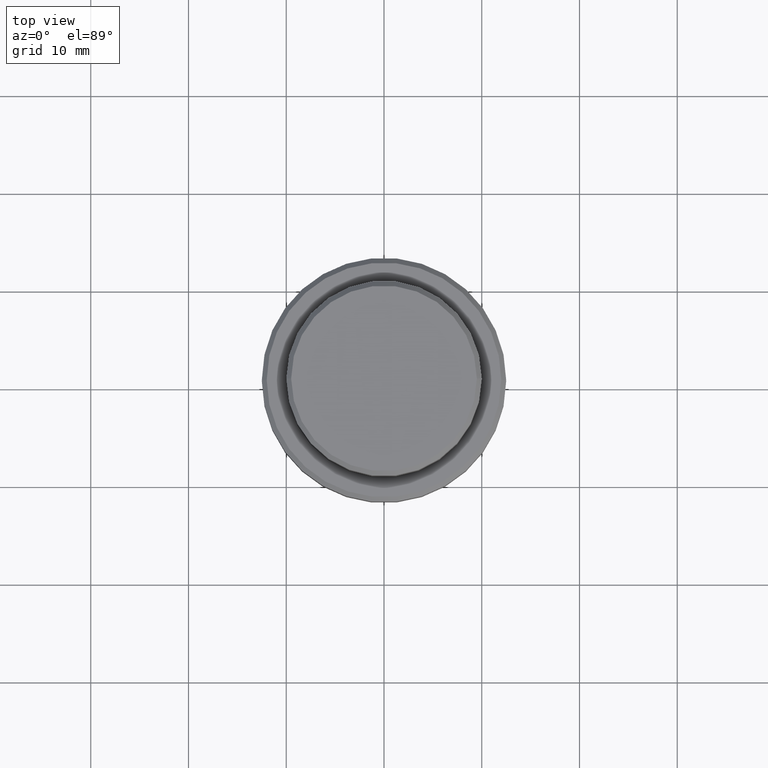
[diagram: clean part render]
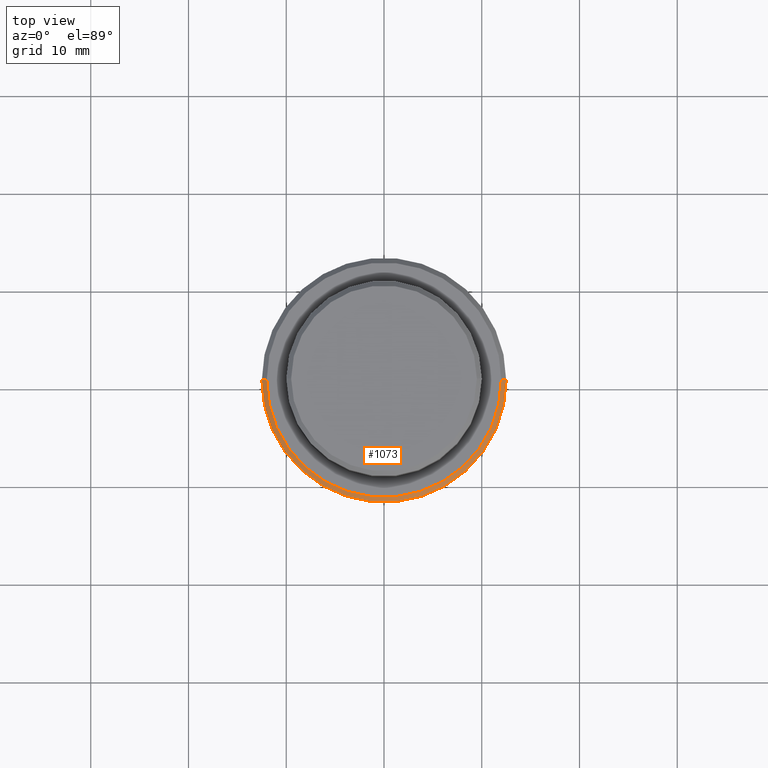
[diagram: same view with one face highlighted and labeled with its STEP entity id]
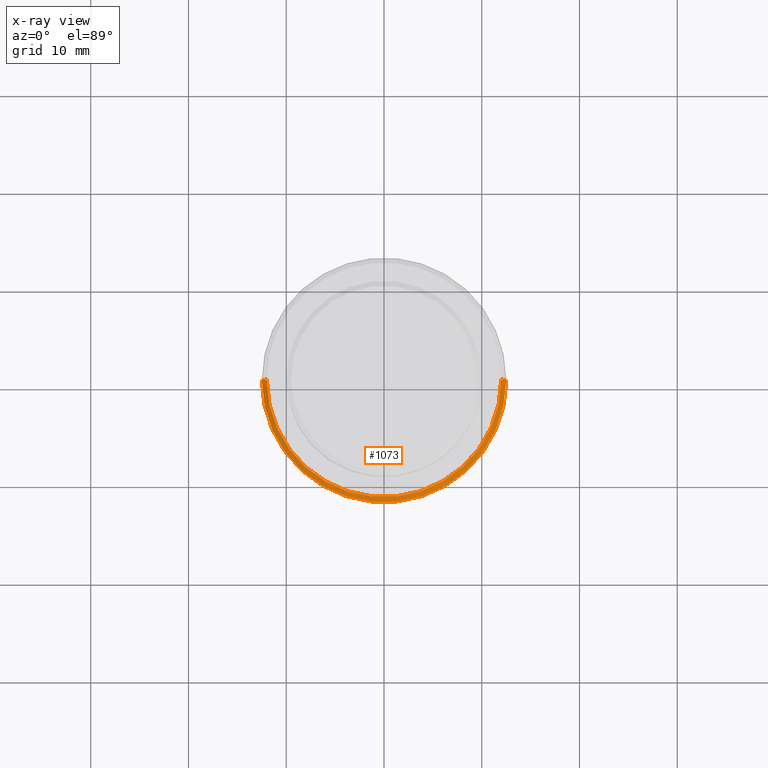
[diagram: x-ray of the same camera — body ghosted, the highlighted face saturated]
A machine part, top view. The second image highlights one B-rep face of the part: STEP entity #1073.
The next image is the same camera in x-ray: the body ghosted, the highlighted face saturated — about 0% of this face is hidden behind the body in this view.
In plain terms, the highlighted conical surface has half-angle 45 deg.
Its self-contained STEP definition (entity closure, byte-faithful):
#61 = EDGE_LOOP ( 'NONE', ( #262, #678, #498, #689 ) ) ;
#63 = EDGE_CURVE ( 'NONE', #873, #1134, #452, .T. ) ;
#119 = DIRECTION ( 'NONE',  ( 0.000000000000000000, 0.000000000000000000, -1.000000000000000000 ) ) ;
#124 = CARTESIAN_POINT ( 'NONE',  ( 12.00000000000000355, 1.469576158976824342E-15, -9.000000000000000000 ) ) ;
#159 = AXIS2_PLACEMENT_3D ( 'NONE', #1202, #119, #887 ) ;
#242 = EDGE_CURVE ( 'NONE', #1252, #1134, #1120, .T. ) ;
#262 = ORIENTED_EDGE ( 'NONE', *, *, #1222, .F. ) ;
#342 = CARTESIAN_POINT ( 'NONE',  ( -12.50000000000000000, 1.530808498934191521E-15, -9.500000000000005329 ) ) ;
#379 = EDGE_CURVE ( 'NONE', #873, #1190, #758, .T. ) ;
#452 = LINE ( 'NONE', #890, #639 ) ;
#470 = CARTESIAN_POINT ( 'NONE',  ( -12.00000000000000355, 0.000000000000000000, -9.000000000000000000 ) ) ;
#498 = ORIENTED_EDGE ( 'NONE', *, *, #63, .T. ) ;
#546 = LINE ( 'NONE', #124, #1169 ) ;
#560 = CARTESIAN_POINT ( 'NONE',  ( 12.50000000000000000, 0.000000000000000000, -9.500000000000005329 ) ) ;
#630 = DIRECTION ( 'NONE',  ( 1.000000000000000000, 0.000000000000000000, 0.000000000000000000 ) ) ;
#639 = VECTOR ( 'NONE', #794, 1000.000000000000000 ) ;
#648 = CARTESIAN_POINT ( 'NONE',  ( 0.000000000000000000, 0.000000000000000000, -9.500000000000005329 ) ) ;
#678 = ORIENTED_EDGE ( 'NONE', *, *, #379, .F. ) ;
#689 = ORIENTED_EDGE ( 'NONE', *, *, #242, .F. ) ;
#758 = CIRCLE ( 'NONE', #944, 12.00000000000000355 ) ;
#763 = CARTESIAN_POINT ( 'NONE',  ( 12.00000000000000355, 1.500192328955507734E-15, -9.000000000000000000 ) ) ;
#794 = DIRECTION ( 'NONE',  ( -0.7071067811865414665, 0.000000000000000000, -0.7071067811865536790 ) ) ;
#806 = CARTESIAN_POINT ( 'NONE',  ( 0.000000000000000000, 0.000000000000000000, -9.000000000000000000 ) ) ;
#873 = VERTEX_POINT ( 'NONE', #470 ) ;
#887 = DIRECTION ( 'NONE',  ( -1.000000000000000000, 0.000000000000000000, 0.000000000000000000 ) ) ;
#890 = CARTESIAN_POINT ( 'NONE',  ( -12.00000000000000355, 0.000000000000000000, -9.000000000000000000 ) ) ;
#944 = AXIS2_PLACEMENT_3D ( 'NONE', #806, #1027, #1015 ) ;
#997 = DIRECTION ( 'NONE',  ( 0.7071067811865414665, 8.659560562354858902E-17, -0.7071067811865536790 ) ) ;
#1000 = FACE_OUTER_BOUND ( 'NONE', #61, .T. ) ;
#1015 = DIRECTION ( 'NONE',  ( 1.000000000000000000, 0.000000000000000000, 0.000000000000000000 ) ) ;
#1027 = DIRECTION ( 'NONE',  ( -0.000000000000000000, -0.000000000000000000, 1.000000000000000000 ) ) ;
#1060 = CONICAL_SURFACE ( 'NONE', #159, 12.00000000000000355, 0.7853981633974396193 ) ;
#1073 = ADVANCED_FACE ( 'NONE', ( #1000 ), #1060, .T. ) ;
#1120 = CIRCLE ( 'NONE', #1278, 12.50000000000000000 ) ;
#1134 = VERTEX_POINT ( 'NONE', #342 ) ;
#1169 = VECTOR ( 'NONE', #997, 1000.000000000000000 ) ;
#1190 = VERTEX_POINT ( 'NONE', #763 ) ;
#1202 = CARTESIAN_POINT ( 'NONE',  ( 0.000000000000000000, 0.000000000000000000, -9.000000000000000000 ) ) ;
#1222 = EDGE_CURVE ( 'NONE', #1190, #1252, #546, .T. ) ;
#1252 = VERTEX_POINT ( 'NONE', #560 ) ;
#1278 = AXIS2_PLACEMENT_3D ( 'NONE', #648, #1300, #630 ) ;
#1300 = DIRECTION ( 'NONE',  ( 0.000000000000000000, 0.000000000000000000, -1.000000000000000000 ) ) ;